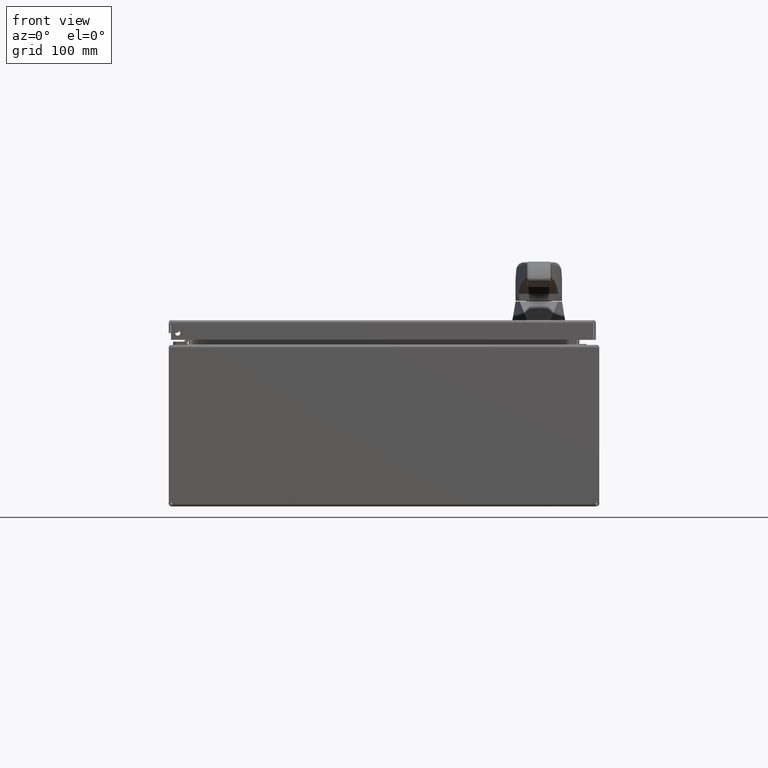
[diagram: clean part render]
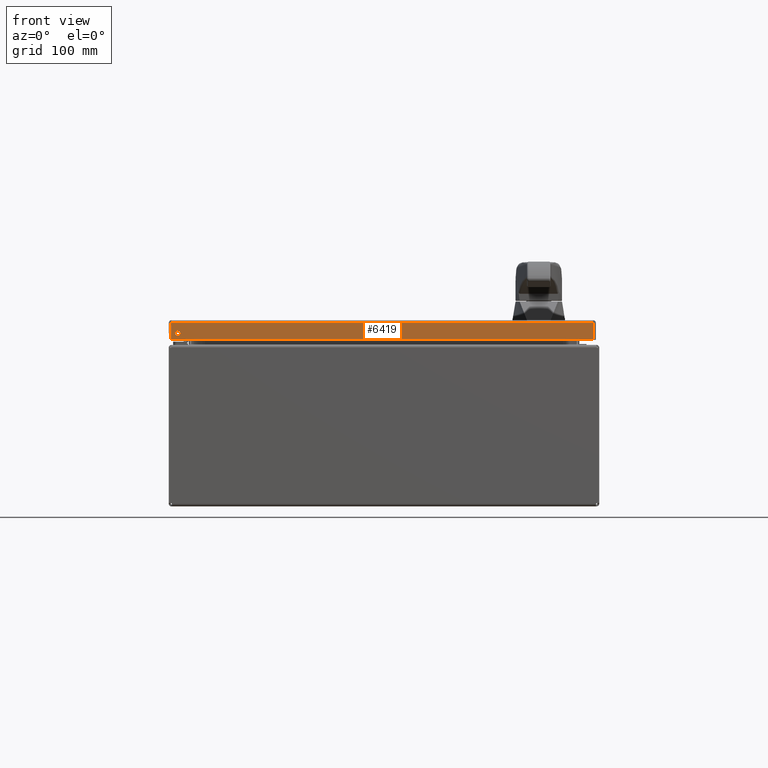
[diagram: same view with one face highlighted and labeled with its STEP entity id]
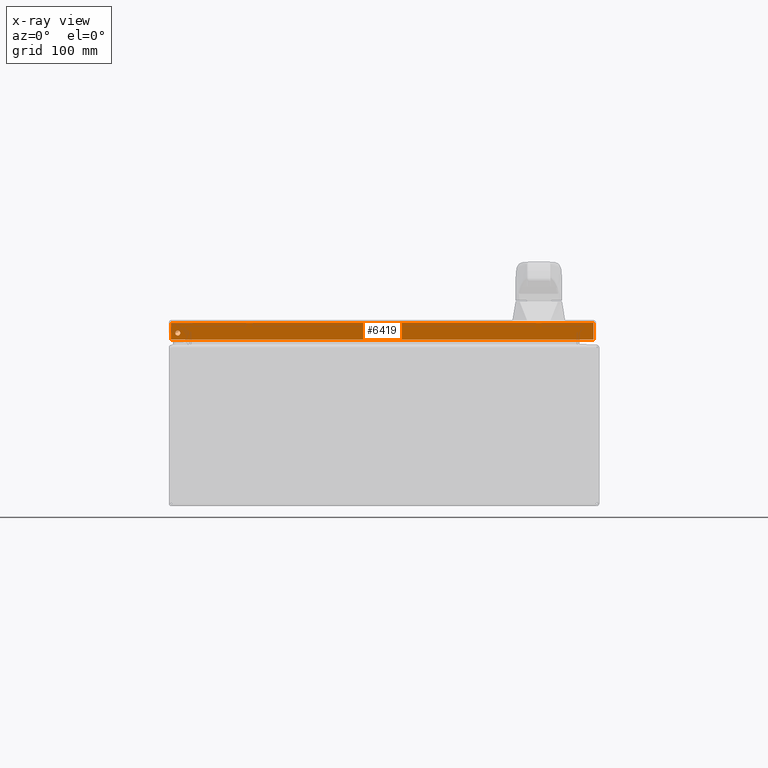
[diagram: x-ray of the same camera — body ghosted, the highlighted face saturated]
A machine part, front view. The second image highlights one B-rep face of the part: STEP entity #6419.
The next image is the same camera in x-ray: the body ghosted, the highlighted face saturated — about 0% of this face is hidden behind the body in this view.
In plain terms, the highlighted planar face has unit normal (0, 1, -0).
Its self-contained STEP definition (entity closure, byte-faithful):
#1381 = FACE_OUTER_BOUND ( 'NONE', #56103, .T. ) ;
#1655 = AXIS2_PLACEMENT_3D ( 'NONE', #60419, #72659, #37768 ) ;
#1737 = ORIENTED_EDGE ( 'NONE', *, *, #57621, .F. ) ;
#2104 = EDGE_CURVE ( 'NONE', #44070, #46952, #22366, .T. ) ;
#2585 = VECTOR ( 'NONE', #57214, 39.37007874015748143 ) ;
#3166 = DIRECTION ( 'NONE',  ( 1.000000000000000000, -1.958920000000014780E-16, 6.934358000000013587E-14 ) ) ;
#5577 = ORIENTED_EDGE ( 'NONE', *, *, #2104, .F. ) ;
#6419 = ADVANCED_FACE ( 'NONE', ( #41412, #1381 ), #41778, .F. ) ;
#11369 = CARTESIAN_POINT ( 'NONE',  ( 0.08504854345591159048, 0.1250000000001339207, 6.187496062991098000 ) ) ;
#12450 = CARTESIAN_POINT ( 'NONE',  ( 15.78995145654380217, 0.1250000000001309786, 6.812246062992187490 ) ) ;
#12850 = DIRECTION ( 'NONE',  ( -1.000000000000000000, 1.958920000000014780E-16, -6.934358000000013587E-14 ) ) ;
#13698 = AXIS2_PLACEMENT_3D ( 'NONE', #36424, #19487, #59315 ) ;
#19487 = DIRECTION ( 'NONE',  ( 6.680265000000421739E-16, 1.000000000000000000, -5.875215999999538886E-16 ) ) ;
#22366 = LINE ( 'NONE', #52492, #73255 ) ;
#25297 = CARTESIAN_POINT ( 'NONE',  ( 15.78995145654380217, 0.1250000000001310341, 6.812246062992187490 ) ) ;
#28618 = VECTOR ( 'NONE', #3166, 39.37007874015748143 ) ;
#31337 = LINE ( 'NONE', #25297, #28618 ) ;
#31607 = ORIENTED_EDGE ( 'NONE', *, *, #64988, .F. ) ;
#32861 = EDGE_CURVE ( 'NONE', #62193, #48604, #31337, .T. ) ;
#36424 = CARTESIAN_POINT ( 'NONE',  ( 0.3350485434558818643, 0.1250000000001380007, 6.437496062991122869 ) ) ;
#37768 = DIRECTION ( 'NONE',  ( 6.934358000000013587E-14, -1.212888000000002355E-16, -1.000000000000000000 ) ) ;
#39983 = LINE ( 'NONE', #11369, #2585 ) ;
#40756 = CARTESIAN_POINT ( 'NONE',  ( 0.08504854345591159048, 0.1250000000001339207, 6.187496062991098000 ) ) ;
#40815 = LINE ( 'NONE', #12450, #41751 ) ;
#41412 = FACE_BOUND ( 'NONE', #61719, .T. ) ;
#41751 = VECTOR ( 'NONE', #58538, 39.37007874015748143 ) ;
#41778 = PLANE ( 'NONE',  #1655 ) ;
#42752 = CARTESIAN_POINT ( 'NONE',  ( 15.78995145654380217, 0.1250000000001309786, 6.812246062992187490 ) ) ;
#44070 = VERTEX_POINT ( 'NONE', #72099 ) ;
#45207 = CARTESIAN_POINT ( 'NONE',  ( 0.08504854345586787545, 0.1250000000001340594, 6.812246062991098583 ) ) ;
#46253 = ORIENTED_EDGE ( 'NONE', *, *, #32861, .F. ) ;
#46952 = VERTEX_POINT ( 'NONE', #40756 ) ;
#48604 = VERTEX_POINT ( 'NONE', #42752 ) ;
#49635 = ORIENTED_EDGE ( 'NONE', *, *, #65762, .T. ) ;
#52492 = CARTESIAN_POINT ( 'NONE',  ( 15.78995145654384835, 0.1250000000001308675, 6.187496062992187795 ) ) ;
#54952 = CIRCLE ( 'NONE', #13698, 0.09400000000000001410 ) ;
#56049 = VERTEX_POINT ( 'NONE', #66745 ) ;
#56103 = EDGE_LOOP ( 'NONE', ( #31607, #5577, #1737, #46253 ) ) ;
#57214 = DIRECTION ( 'NONE',  ( -6.934358000000013587E-14, 1.212888000000002355E-16, 1.000000000000000000 ) ) ;
#57621 = EDGE_CURVE ( 'NONE', #48604, #44070, #40815, .T. ) ;
#58538 = DIRECTION ( 'NONE',  ( 6.934358000000013587E-14, -1.212888000000002355E-16, -1.000000000000000000 ) ) ;
#59315 = DIRECTION ( 'NONE',  ( -1.000000000000000000, 7.265553174638997250E-16, -6.974931047653436729E-14 ) ) ;
#60419 = CARTESIAN_POINT ( 'NONE',  ( 7.937499999999856115, 0.1250000000001324496, 6.542619456612828621 ) ) ;
#61719 = EDGE_LOOP ( 'NONE', ( #49635 ) ) ;
#62193 = VERTEX_POINT ( 'NONE', #45207 ) ;
#64988 = EDGE_CURVE ( 'NONE', #46952, #62193, #39983, .T. ) ;
#65762 = EDGE_CURVE ( 'NONE', #56049, #56049, #54952, .T. ) ;
#66745 = CARTESIAN_POINT ( 'NONE',  ( 0.2410485434558818640, 0.1250000000001380840, 6.437496062991116652 ) ) ;
#72099 = CARTESIAN_POINT ( 'NONE',  ( 15.78995145654384835, 0.1250000000001308675, 6.187496062992187795 ) ) ;
#72659 = DIRECTION ( 'NONE',  ( 1.958920000000098843E-16, 1.000000000000000000, -1.212887999999866523E-16 ) ) ;
#73255 = VECTOR ( 'NONE', #12850, 39.37007874015748143 ) ;